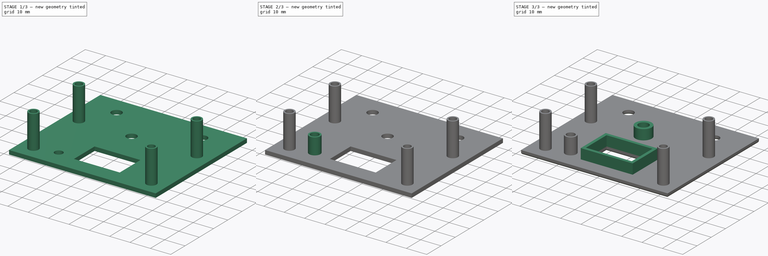
[diagram: build sequence overview — one tinted view per stage of 3, left to right]
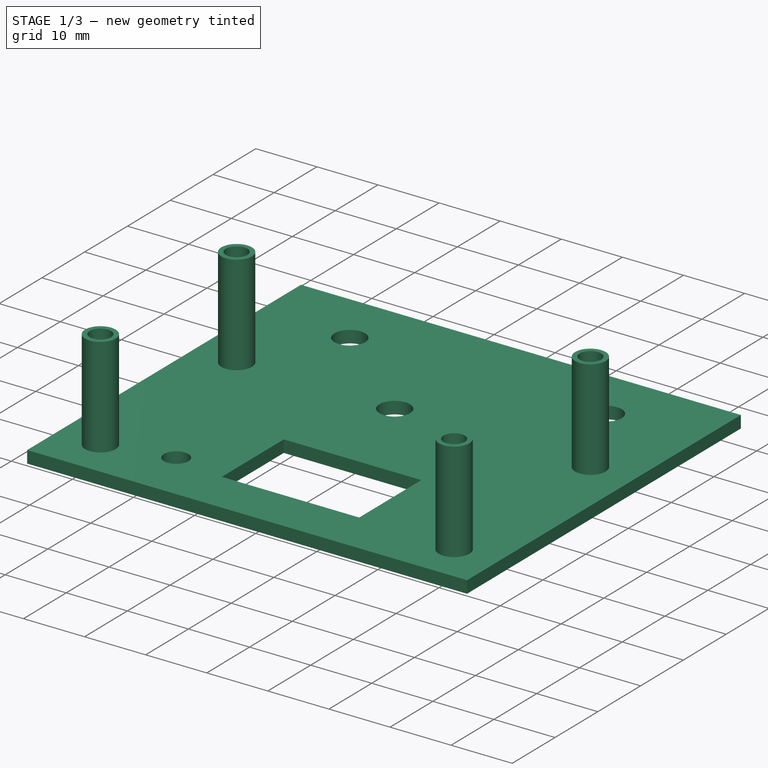
[diagram: stage 1 of 3 — iso view after this stage's code; geometry added in this stage tinted green]
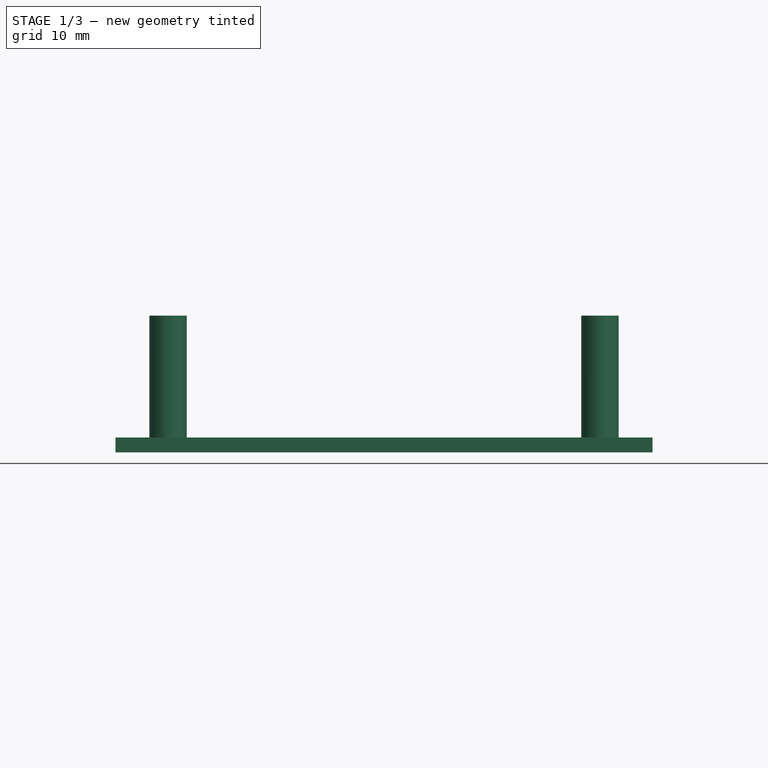
[diagram: stage 1 of 3 — front view after this stage's code; geometry added in this stage tinted green]
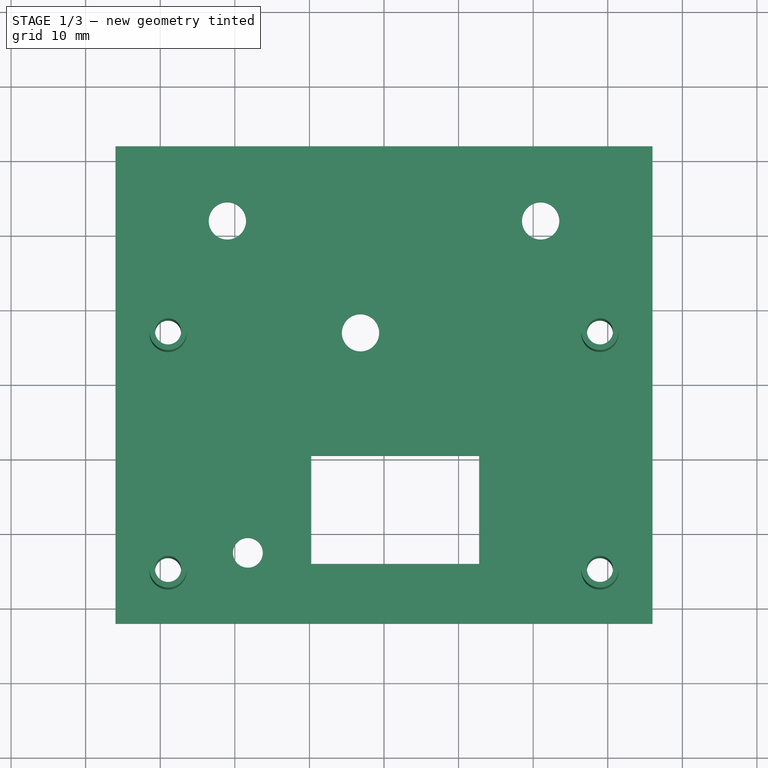
[diagram: stage 1 of 3 — top view after this stage's code; geometry added in this stage tinted green]
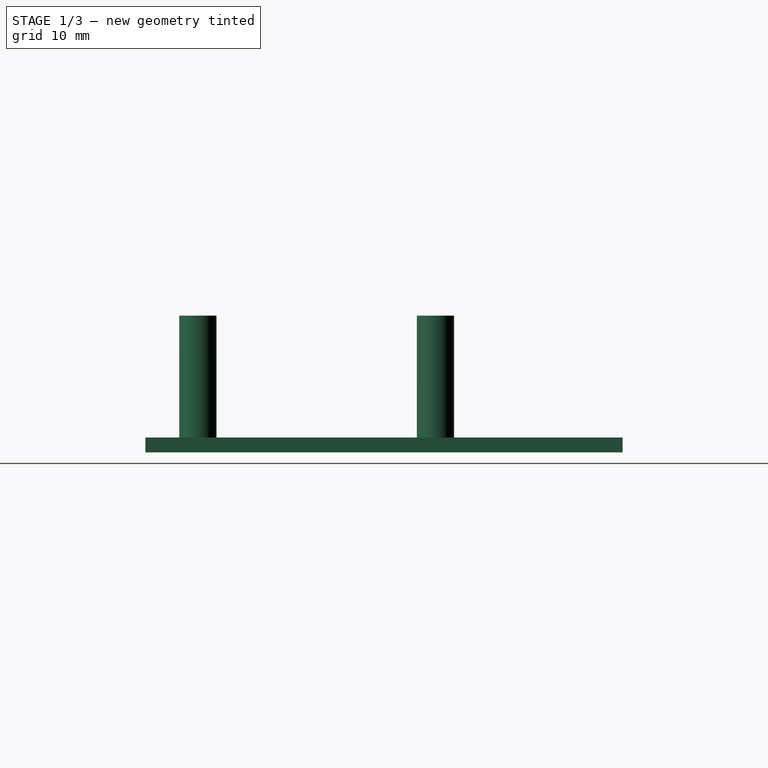
[diagram: stage 1 of 3 — right view after this stage's code; geometry added in this stage tinted green]
FCSTD DOCUMENT  (FreeCAD 0.19R23141 (Git))
Label: Top Bracket w Bolts
License: All rights reserved
LicenseURL: http://en.wikipedia.org/wiki/All_rights_reserved
objects: Sketcher::SketchObject×4, PartDesign::Pad×4, PartDesign::Fillet×1, PartDesign::Body×1
note: 15 computed .brp shape members not serialized (recipe doc carries the construction recipe); baked Part::Feature solids carry a one-line shape summary decoded from their .brp

FEATURE [Sketcher::SketchObject] Sketch  label="top_with_holes_Sketch"
  MapMode = 5
  Support = -> [XY_Plane]
  sketch-geometry (16):
    g0: LineSegment StartX=-36 StartY=32 StartZ=0 EndX=36 EndY=32 EndZ=0
    g1: LineSegment StartX=36 StartY=32 StartZ=0 EndX=36 EndY=-32 EndZ=0
    g2: LineSegment StartX=36 StartY=-32 StartZ=0 EndX=-36 EndY=-32 EndZ=0
    g3: LineSegment StartX=-36 StartY=-32 StartZ=0 EndX=-36 EndY=32 EndZ=0
    g4: Circle CenterX=-21 CenterY=22 CenterZ=0 NormalX=0 NormalY=0 NormalZ=1 AngleXU=0 Radius=2.5
    g5: Circle CenterX=21 CenterY=22 CenterZ=0 NormalX=0 NormalY=0 NormalZ=1 AngleXU=0 Radius=2.5
    g6: LineSegment StartX=-9.75 StartY=-9.5 StartZ=0 EndX=12.75 EndY=-9.5 EndZ=0
    g7: LineSegment StartX=12.75 StartY=-9.5 StartZ=0 EndX=12.75 EndY=-24 EndZ=0
    g8: LineSegment StartX=12.75 StartY=-24 StartZ=0 EndX=-9.75 EndY=-24 EndZ=0
    g9: LineSegment StartX=-9.75 StartY=-24 StartZ=0 EndX=-9.75 EndY=-9.5 EndZ=0
    g10: Circle CenterX=-18.25 CenterY=-22.5 CenterZ=0 NormalX=0 NormalY=0 NormalZ=1 AngleXU=0 Radius=2
    g11: Circle CenterX=-3.15 CenterY=7 CenterZ=0 NormalX=0 NormalY=0 NormalZ=1 AngleXU=0 Radius=2.5
    g12: Circle CenterX=-28.95 CenterY=-24.95 CenterZ=0 NormalX=0 NormalY=0 NormalZ=1 AngleXU=0 Radius=1.75
    g13: Circle CenterX=28.95 CenterY=-24.95 CenterZ=0 NormalX=0 NormalY=0 NormalZ=1 AngleXU=0 Radius=1.75
    g14: Circle CenterX=-28.95 CenterY=6.9 CenterZ=0 NormalX=0 NormalY=0 NormalZ=1 AngleXU=0 Radius=1.75
    g15: Circle CenterX=28.95 CenterY=6.9 CenterZ=0 NormalX=0 NormalY=0 NormalZ=1 AngleXU=0 Radius=1.75
  constraints (46):
    c: Coincident(g0,g1)
    c: Coincident(g1,g2)
    c: Coincident(g2,g3)
    c: Coincident(g3,g0)
    c: Diameter(g5) = 5
    c: Diameter(g4) = 5
    c: DistanceX(g0,g4) = 15
    c: DistanceY(g4,g0) = 10
    c: DistanceY(g5,g0) = 10
    c: DistanceX(g2,g1) = 72
    c: DistanceY(g1,g0) = 64
    c: DistanceX(g5,g0) = 15
    c: Coincident(g6,g7)
    c: Coincident(g7,g8)
    c: Coincident(g8,g9)
    c: Coincident(g9,g6)
    c: Horizontal(g6)
    c: Vertical(g7)
    c: DistanceX(g6,g6) = 22.5
    c: DistanceY(g7,g7) = 14.5
    c: DistanceX(g7,g1) = 23.25
    c: DistanceY(g2,g8) = 8
    c: Symmetric(g2,g1,g-2)
    c: Equal(g9,g7)
    c: Equal(g6,g8)
    c: Equal(g3,g1)
    c: Equal(g0,g2)
    c: Symmetric(g0,g2,g-1)
    c: Diameter(g10) = 4
    c: DistanceY(g2,g10) = 9.5
    c: DistanceX(g10,g8) = 8.5
    c: Diameter(g11) = 5
    c: Diameter(g12) = 3.5
    c: DistanceY(g2,g12) = 7.05
    c: Equal(g12,g13) = 3.5
    c: DistanceY(g1,g13) = 7.05
    c: Equal(g12,g14) = 3.5
    c: DistanceY(g12,g14) = 31.85
    c: DistanceY(g13,g15) = 31.85
    c: DistanceX(g14,g15) = 57.9
    c: DistanceY(g2,g11) = 39
    c: DistanceX(g6,g11) = 6.6
    c: DistanceX(g12,g13) = 57.9
    c: DistanceX(g13,g1) = 7.05
    c: DistanceX(g2,g14) = 7.05
    c: Diameter(g15) = 3.5
FEATURE [PartDesign::Pad] Pad  label="Holes"
  AllowMultiFace = false
  Direction = (1,1,1)
  Length = 2
  Length2 = 100
  Profile = -> Sketch
  Type = 0
FEATURE [Sketcher::SketchObject] Sketch012
  ExternalGeometry = -> [Sketch]
  MapMode = 5
  Placement = pos=(0,0,2) rot=(0,0,1;0rad)
  sketch-geometry (8):
    g0: Circle CenterX=28.95 CenterY=-24.95 CenterZ=0 NormalX=0 NormalY=0 NormalZ=1 AngleXU=0 Radius=2.5
    g1: Circle CenterX=28.95 CenterY=-24.95 CenterZ=0 NormalX=0 NormalY=0 NormalZ=1 AngleXU=0 Radius=1.75
    g2: Circle CenterX=28.95 CenterY=6.9 CenterZ=0 NormalX=0 NormalY=0 NormalZ=1 AngleXU=0 Radius=2.5
    g3: Circle CenterX=28.95 CenterY=6.9 CenterZ=0 NormalX=0 NormalY=0 NormalZ=1 AngleXU=0 Radius=1.75
    g4: Circle CenterX=-28.95 CenterY=-24.95 CenterZ=0 NormalX=0 NormalY=0 NormalZ=1 AngleXU=0 Radius=2.5
    g5: Circle CenterX=-28.95 CenterY=-24.95 CenterZ=0 NormalX=0 NormalY=0 NormalZ=1 AngleXU=0 Radius=1.75
    g6: Circle CenterX=-28.95 CenterY=6.9 CenterZ=0 NormalX=0 NormalY=0 NormalZ=1 AngleXU=0 Radius=2.5
    g7: Circle CenterX=-28.95 CenterY=6.9 CenterZ=0 NormalX=0 NormalY=0 NormalZ=1 AngleXU=0 Radius=1.75
  constraints (16):
    c: Coincident(g1,g0)
    c: Diameter(g1) = 3.5
    c: Diameter(g0) = 5
    c: Coincident(g3,g2)
    c: Equal(g1,g3) = 3.5
    c: Equal(g0,g2) = 5
    c: Coincident(g5,g4)
    c: Equal(g1,g5) = 3.5
    c: Equal(g0,g4) = 5
    c: Coincident(g7,g6)
    c: Equal(g1,g7) = 3.5
    c: Equal(g0,g6) = 5
    c: Coincident(g-3,g6)
    c: Coincident(g2,g-4)
    c: Coincident(g0,g-5)
    c: Coincident(g4,g-6)
FEATURE [PartDesign::Pad] Pad001  label="Screw standoffs"
  BaseFeature = -> Pad
  Direction = (1,1,1)
  Length = 16.35
  Length2 = 100
  Profile = -> Sketch012
  Type = 0
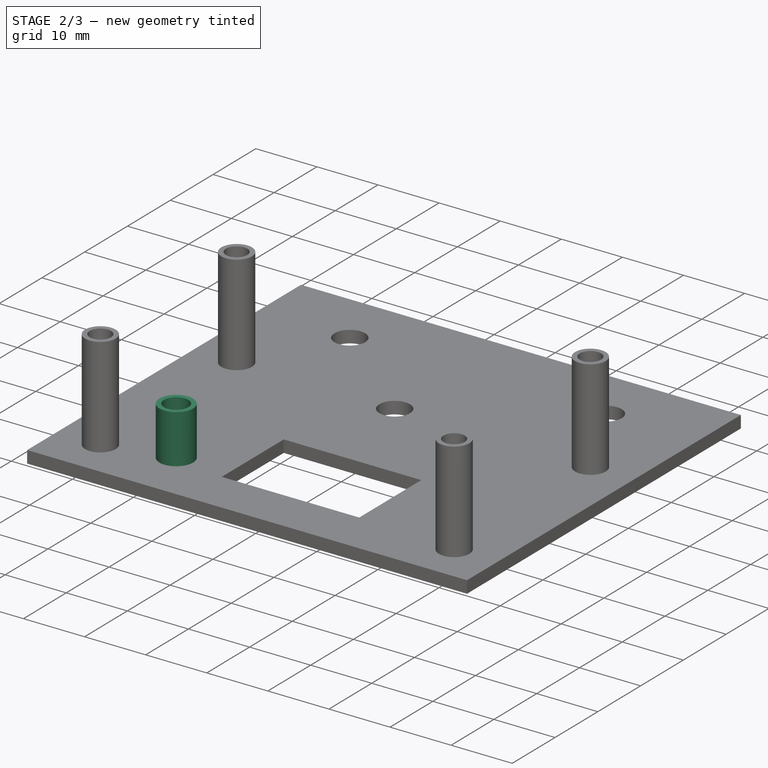
[diagram: stage 2 of 3 — iso view after this stage's code; geometry added in this stage tinted green]
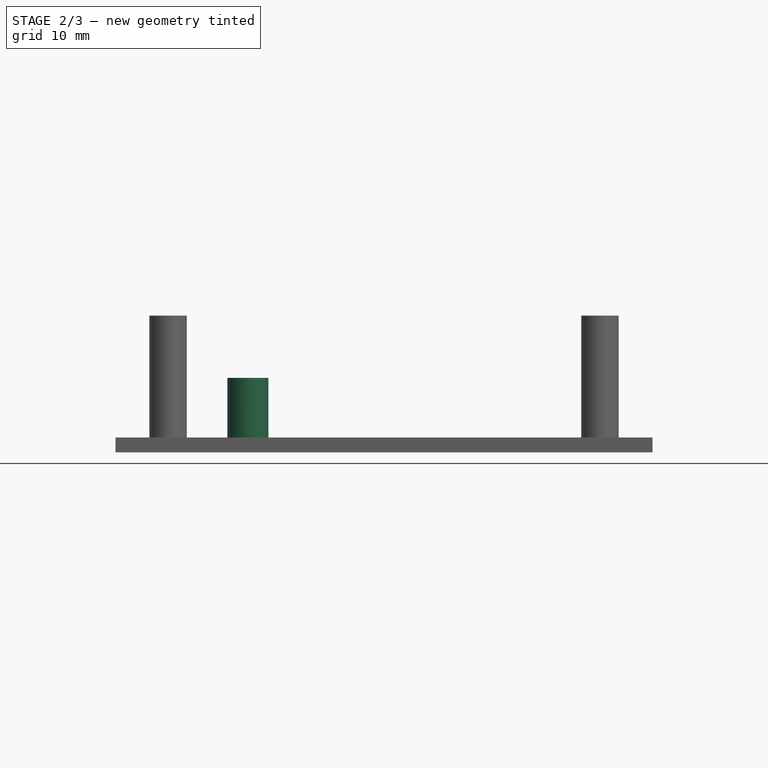
[diagram: stage 2 of 3 — front view after this stage's code; geometry added in this stage tinted green]
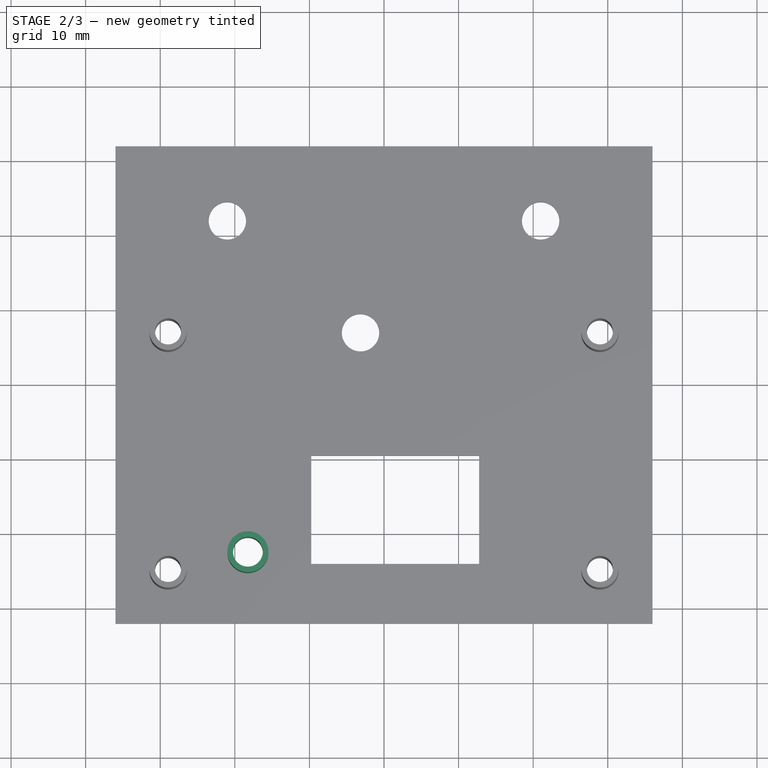
[diagram: stage 2 of 3 — top view after this stage's code; geometry added in this stage tinted green]
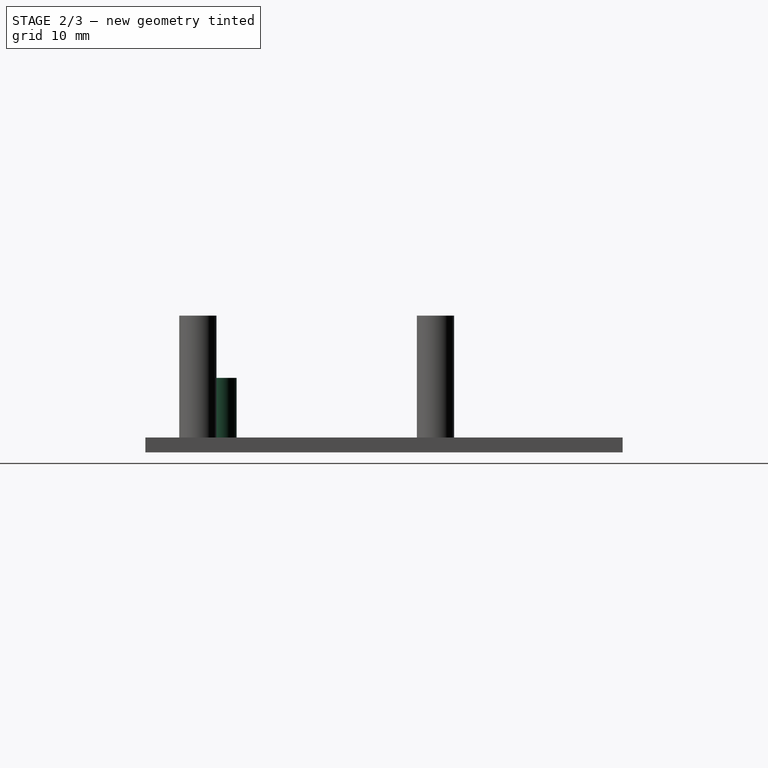
[diagram: stage 2 of 3 — right view after this stage's code; geometry added in this stage tinted green]
FEATURE [Sketcher::SketchObject] Sketch013
  ExternalGeometry = -> [Pad001]
  MapMode = 5
  Placement = pos=(0,0,2) rot=(0,0,1;0rad)
  Support = -> [Pad001]
  sketch-geometry (2):
    g0: Circle CenterX=-18.25 CenterY=-22.5 CenterZ=0 NormalX=0 NormalY=0 NormalZ=1 AngleXU=0 Radius=2
    g1: Circle CenterX=-18.25 CenterY=-22.5 CenterZ=0 NormalX=0 NormalY=0 NormalZ=1 AngleXU=0 Radius=2.75
  constraints (4):
    c: Coincident(g1,g0)
    c: Diameter(g0) = 4
    c: Diameter(g1) = 5.5
    c: Coincident(g0,g-3)
FEATURE [PartDesign::Pad] Pad002  label="Reset switch"
  BaseFeature = -> Pad001
  Direction = (1,1,1)
  Length = 8
  Length2 = 100
  Profile = -> Sketch013
  Type = 0
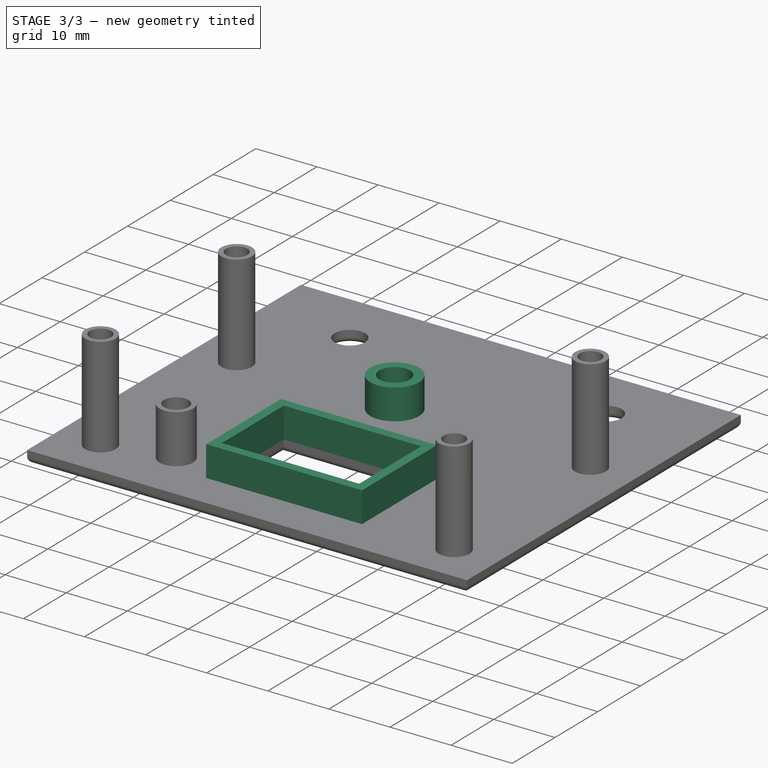
[diagram: stage 3 of 3 — iso view after this stage's code; geometry added in this stage tinted green]
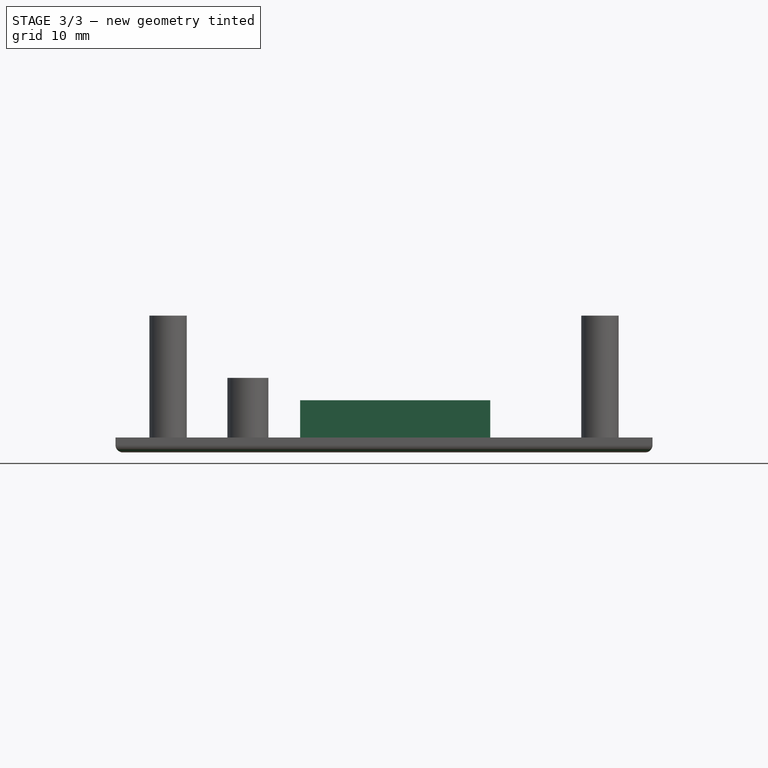
[diagram: stage 3 of 3 — front view after this stage's code; geometry added in this stage tinted green]
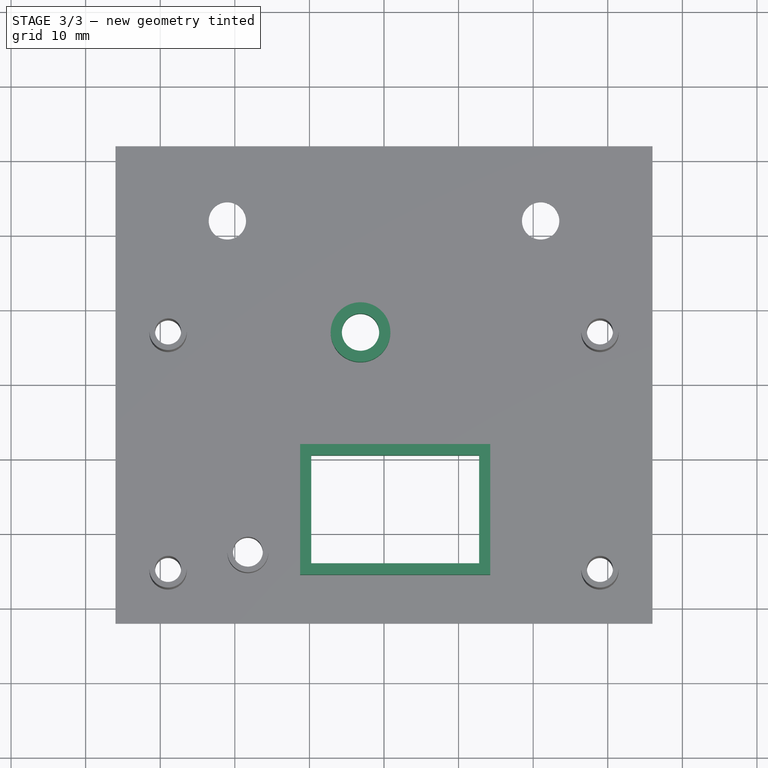
[diagram: stage 3 of 3 — top view after this stage's code; geometry added in this stage tinted green]
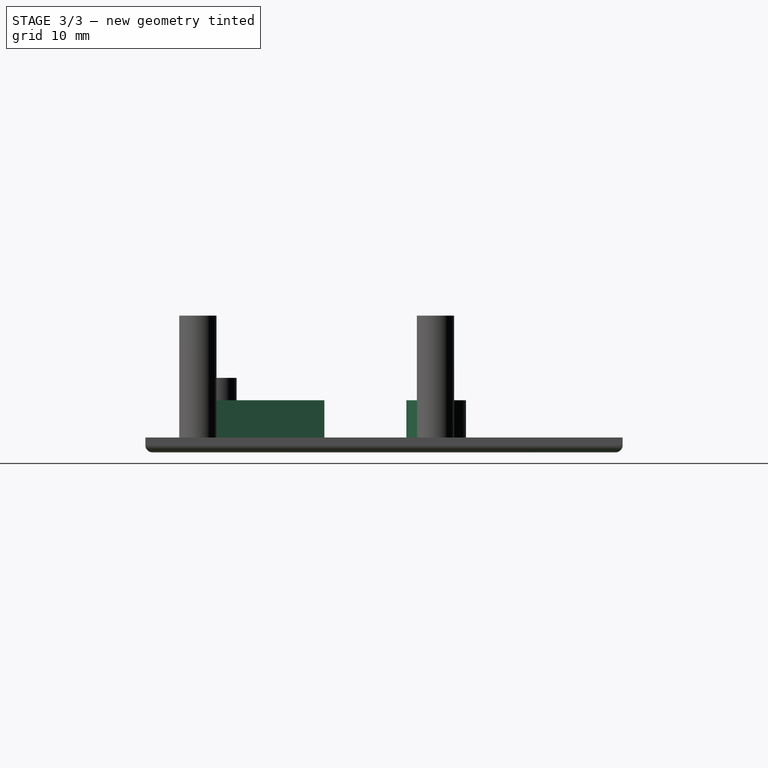
[diagram: stage 3 of 3 — right view after this stage's code; geometry added in this stage tinted green]
FEATURE [Sketcher::SketchObject] Sketch014
  ExternalGeometry = -> [Pad002]
  MapMode = 5
  Placement = pos=(0,0,2) rot=(0,0,1;0rad)
  Support = -> [Pad002]
  sketch-geometry (10):
    g0: Circle CenterX=-3.15 CenterY=7 CenterZ=0 NormalX=0 NormalY=0 NormalZ=1 AngleXU=0 Radius=4
    g1: Circle CenterX=-3.15 CenterY=7 CenterZ=0 NormalX=0 NormalY=0 NormalZ=1 AngleXU=0 Radius=2.5
    g2: LineSegment StartX=-9.75 StartY=-9.5 StartZ=0 EndX=12.75 EndY=-9.5 EndZ=0
    g3: LineSegment StartX=12.75 StartY=-9.5 StartZ=0 EndX=12.75 EndY=-24 EndZ=0
    g4: LineSegment StartX=12.75 StartY=-24 StartZ=0 EndX=-9.75 EndY=-24 EndZ=0
    g5: LineSegment StartX=-9.75 StartY=-24 StartZ=0 EndX=-9.75 EndY=-9.5 EndZ=0
    g6: LineSegment StartX=-11.25 StartY=-8 StartZ=0 EndX=14.25 EndY=-8 EndZ=0
    g7: LineSegment StartX=14.25 StartY=-8 StartZ=0 EndX=14.25 EndY=-25.5 EndZ=0
    g8: LineSegment StartX=14.25 StartY=-25.5 StartZ=0 EndX=-11.25 EndY=-25.5 EndZ=0
    g9: LineSegment StartX=-11.25 StartY=-25.5 StartZ=0 EndX=-11.25 EndY=-8 EndZ=0
  constraints (26):
    c: Coincident(g1,g0)
    c: Diameter(g1) = 5
    c: Diameter(g0) = 8
    c: Coincident(g-3,g0)
    c: Coincident(g2,g3)
    c: Coincident(g3,g4)
    c: Coincident(g4,g5)
    c: Coincident(g5,g2)
    c: Horizontal(g2)
    c: Horizontal(g4)
    c: Vertical(g3)
    c: Vertical(g5)
    c: Coincident(g6,g7)
    c: Coincident(g7,g8)
    c: Coincident(g8,g9)
    c: Coincident(g9,g6)
    c: Horizontal(g6)
    c: Horizontal(g8)
    c: Vertical(g7)
    c: Vertical(g9)
    c: Coincident(g2,g-4)
    c: Coincident(g4,g-5)
    c: DistanceX(g2,g6) = 1.5
    c: DistanceY(g2,g6) = 1.5
    c: DistanceY(g7,g3) = 1.5
    c: DistanceX(g6,g2) = 1.5
FEATURE [PartDesign::Pad] Pad003  label="Volt Adjust"
  BaseFeature = -> Pad002
  Direction = (1,1,1)
  Length = 5
  Length2 = 100
  Profile = -> Sketch014
  Type = 0
FEATURE [PartDesign::Fillet] Fillet
  Base = -> Pad003 [Face4]
  BaseFeature = -> Pad003
  Radius = 1
  SupportTransform = false
FEATURE [PartDesign::Body] Body
  Group = -> [Sketch,Pad,Sketch012,Pad001,Sketch013,Pad002,Sketch014,Pad003,Fillet]
  Origin = -> Origin
  Tip = -> Fillet
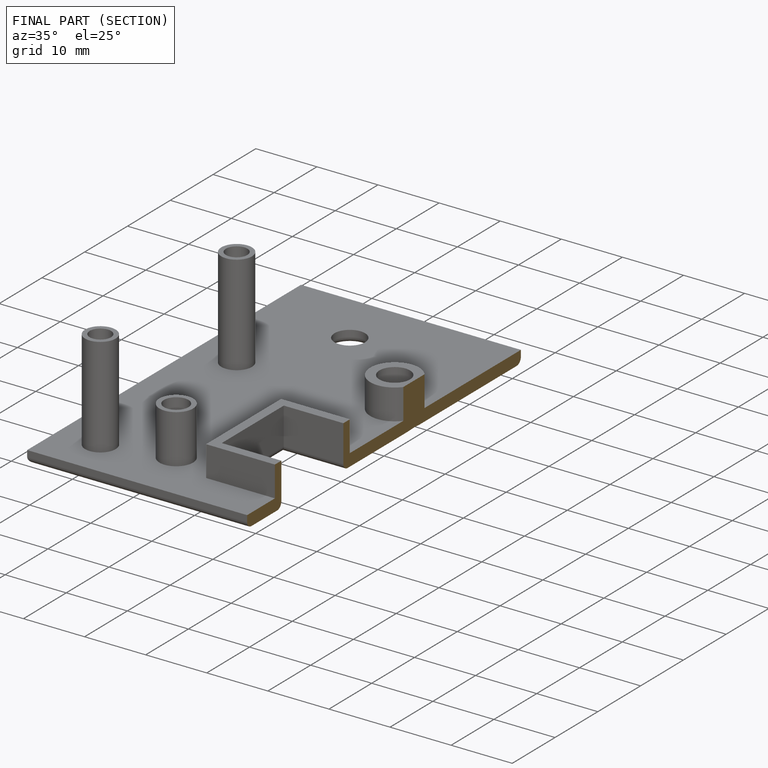
[diagram: finished part — half-section view (interior)]
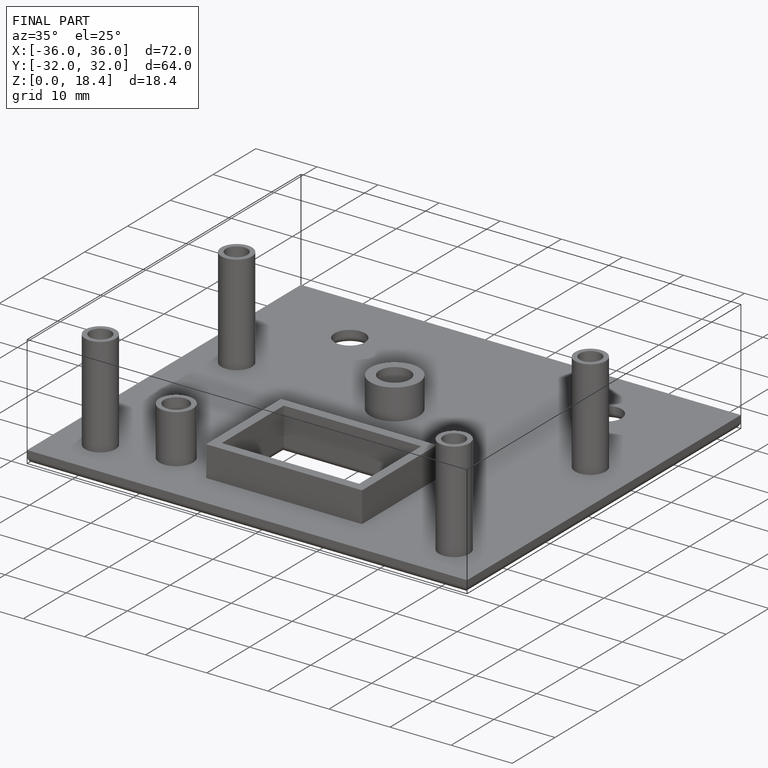
[diagram: finished part — iso view with bounding-box wireframe]
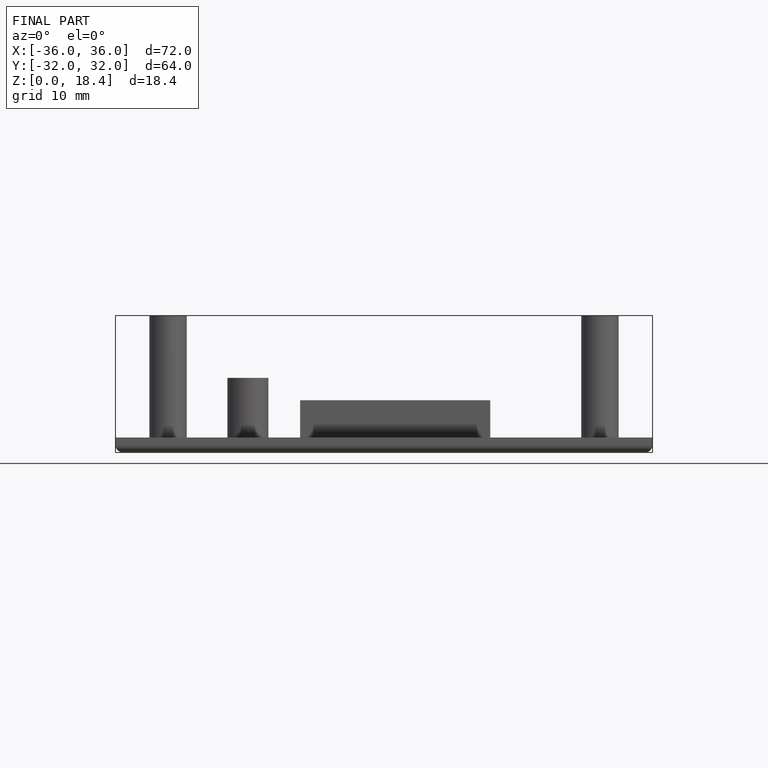
[diagram: finished part — front view with bounding-box wireframe]
